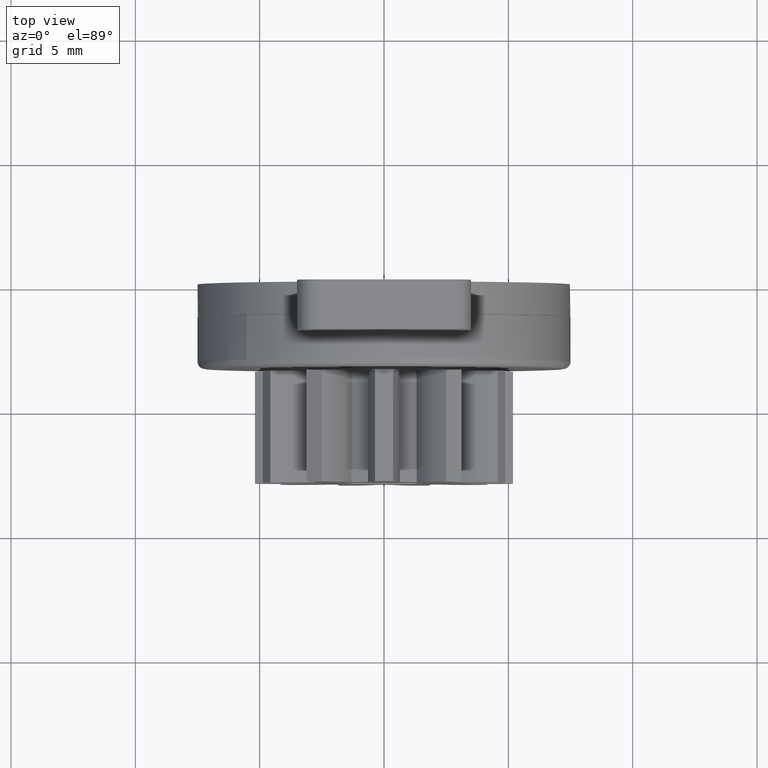
[diagram: clean part render]
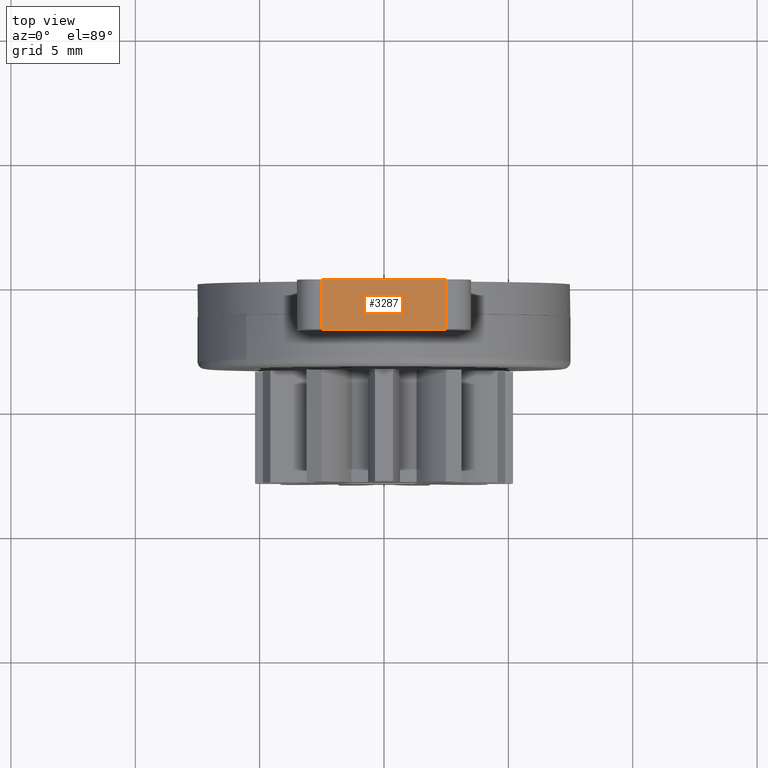
[diagram: same view with one face highlighted and labeled with its STEP entity id]
A machine part, top view. The second image highlights one B-rep face of the part: STEP entity #3287.
In plain terms, the highlighted face is a freeform B-spline surface patch.
Its self-contained STEP definition (entity closure, byte-faithful):
#3221=CARTESIAN_POINT('',(-2.500000000000000,0.0,12.0));
#3222=VERTEX_POINT('',#3221);
#3237=CARTESIAN_POINT('',(-2.500000000000000,-2.0,12.0));
#3238=VERTEX_POINT('',#3237);
#3252=CARTESIAN_POINT('',(-2.500000000000000,-2.0,12.0));
#3253=CARTESIAN_POINT('',(-2.500000000000000,0.0,12.0));
#3254=QUASI_UNIFORM_CURVE('',1,(#3252,#3253),.UNSPECIFIED.,.F.,.U.);
#3255=EDGE_CURVE('',#3238,#3222,#3254,.T.);
#3260=CARTESIAN_POINT('',(-2.749749990309030,-2.099899996123612,12.0));
#3261=CARTESIAN_POINT('',(2.749750124419481,-2.099899996123612,12.0));
#3262=CARTESIAN_POINT('',(-2.749749990309030,0.099900049767792,12.0));
#3263=CARTESIAN_POINT('',(2.749750124419481,0.099900049767792,12.0));
#3264=B_SPLINE_SURFACE_WITH_KNOTS('',1,1,((#3260,#3262),(#3261,#3263)),.UNSPECIFIED.,.F.,.F.,.U.,(2,2),(2,2),(0.0,5.499500114728511),(0.0,2.199800045891404),.UNSPECIFIED.);
#3265=CARTESIAN_POINT('',(2.500000000000000,0.0,12.0));
#3266=VERTEX_POINT('',#3265);
#3267=CARTESIAN_POINT('',(-2.500000000000000,0.0,12.0));
#3268=CARTESIAN_POINT('',(2.500000000000000,0.0,12.0));
#3269=QUASI_UNIFORM_CURVE('',1,(#3267,#3268),.UNSPECIFIED.,.F.,.U.);
#3270=EDGE_CURVE('',#3222,#3266,#3269,.T.);
#3271=ORIENTED_EDGE('',*,*,#3270,.F.);
#3272=ORIENTED_EDGE('',*,*,#3255,.F.);
#3273=CARTESIAN_POINT('',(2.500000000000000,-2.0,12.0));
#3274=VERTEX_POINT('',#3273);
#3275=CARTESIAN_POINT('',(-2.500000000000000,-2.0,12.0));
#3276=CARTESIAN_POINT('',(2.500000000000000,-2.0,12.0));
#3277=QUASI_UNIFORM_CURVE('',1,(#3275,#3276),.UNSPECIFIED.,.F.,.U.);
#3278=EDGE_CURVE('',#3238,#3274,#3277,.T.);
#3279=ORIENTED_EDGE('',*,*,#3278,.T.);
#3280=CARTESIAN_POINT('',(2.500000000000000,-2.0,12.0));
#3281=CARTESIAN_POINT('',(2.500000000000000,0.0,12.0));
#3282=QUASI_UNIFORM_CURVE('',1,(#3280,#3281),.UNSPECIFIED.,.F.,.U.);
#3283=EDGE_CURVE('',#3274,#3266,#3282,.T.);
#3284=ORIENTED_EDGE('',*,*,#3283,.T.);
#3285=EDGE_LOOP('',(#3271,#3272,#3279,#3284));
#3286=FACE_OUTER_BOUND('',#3285,.T.);
#3287=ADVANCED_FACE('',(#3286),#3264,.T.);